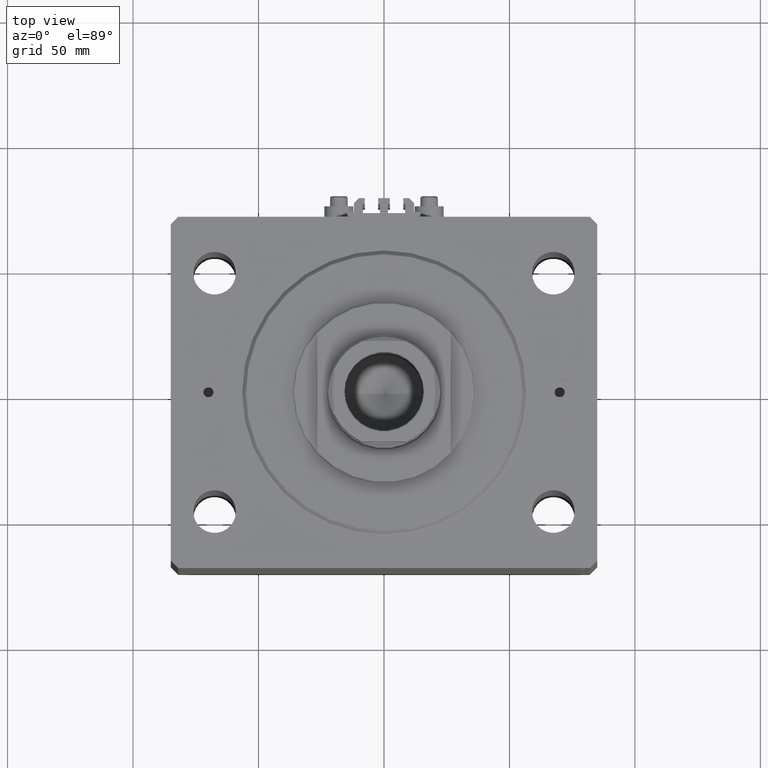
[diagram: clean part render]
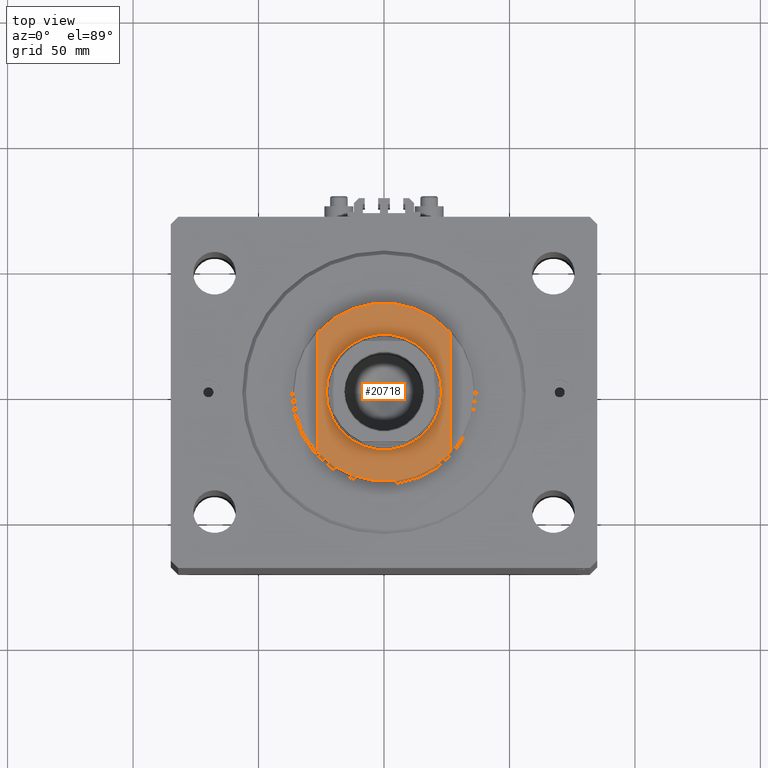
[diagram: same view with one face highlighted and labeled with its STEP entity id]
A machine part, top view. The second image highlights one B-rep face of the part: STEP entity #20718.
In plain terms, the highlighted planar face has unit normal (0, 0, 1).
Its self-contained STEP definition (entity closure, byte-faithful):
#1101 = CARTESIAN_POINT ( 'NONE',  ( 26.50000000000000000, -23.62202362203536765, -8.000000000000000000 ) ) ;
#1213 = AXIS2_PLACEMENT_3D ( 'NONE', #12981, #23275, #5347 ) ;
#1593 = DIRECTION ( 'NONE',  ( 0.000000000000000000, 0.000000000000000000, -1.000000000000000000 ) ) ;
#1653 = CARTESIAN_POINT ( 'NONE',  ( 0.000000000000000000, 0.000000000000000000, -8.000000000000000000 ) ) ;
#1661 = EDGE_CURVE ( 'NONE', #17832, #17468, #25920, .T. ) ;
#3263 = LINE ( 'NONE', #43122, #45022 ) ;
#3404 = EDGE_CURVE ( 'NONE', #37430, #14197, #7607, .T. ) ;
#4210 = ORIENTED_EDGE ( 'NONE', *, *, #29337, .T. ) ;
#5347 = DIRECTION ( 'NONE',  ( -1.000000000000000000, 0.000000000000000000, 0.000000000000000000 ) ) ;
#7480 = ORIENTED_EDGE ( 'NONE', *, *, #1661, .T. ) ;
#7607 = LINE ( 'NONE', #39592, #7695 ) ;
#7695 = VECTOR ( 'NONE', #32198, 1000.000000000000000 ) ;
#7870 = EDGE_CURVE ( 'NONE', #37430, #10990, #23084, .T. ) ;
#9356 = DIRECTION ( 'NONE',  ( 0.000000000000000000, 0.000000000000000000, -1.000000000000000000 ) ) ;
#9581 = CARTESIAN_POINT ( 'NONE',  ( 0.000000000000000000, 0.000000000000000000, -8.000000000000000000 ) ) ;
#10990 = VERTEX_POINT ( 'NONE', #43093 ) ;
#11144 = CIRCLE ( 'NONE', #1213, 23.00000000000001776 ) ;
#11440 = AXIS2_PLACEMENT_3D ( 'NONE', #1653, #16229, #34583 ) ;
#11486 = AXIS2_PLACEMENT_3D ( 'NONE', #23567, #1593, #45977 ) ;
#12981 = CARTESIAN_POINT ( 'NONE',  ( 0.000000000000000000, 0.000000000000000000, -8.000000000000000000 ) ) ;
#14197 = VERTEX_POINT ( 'NONE', #30476 ) ;
#14702 = ORIENTED_EDGE ( 'NONE', *, *, #3404, .F. ) ;
#16229 = DIRECTION ( 'NONE',  ( -0.000000000000000000, -0.000000000000000000, 1.000000000000000000 ) ) ;
#16392 = CARTESIAN_POINT ( 'NONE',  ( 0.000000000000000000, 0.000000000000000000, -8.000000000000000000 ) ) ;
#17468 = VERTEX_POINT ( 'NONE', #40631 ) ;
#17832 = VERTEX_POINT ( 'NONE', #29830 ) ;
#18193 = EDGE_LOOP ( 'NONE', ( #42564, #7480 ) ) ;
#18292 = EDGE_CURVE ( 'NONE', #17468, #17832, #11144, .T. ) ;
#19978 = FACE_OUTER_BOUND ( 'NONE', #28335, .T. ) ;
#20718 = ADVANCED_FACE ( 'NONE', ( #26908, #19978 ), #34523, .T. ) ;
#23084 = CIRCLE ( 'NONE', #39817, 35.49999999999996447 ) ;
#23275 = DIRECTION ( 'NONE',  ( -0.000000000000000000, -0.000000000000000000, 1.000000000000000000 ) ) ;
#23567 = CARTESIAN_POINT ( 'NONE',  ( 0.000000000000000000, 0.000000000000000000, -8.000000000000000000 ) ) ;
#24196 = ORIENTED_EDGE ( 'NONE', *, *, #7870, .T. ) ;
#24953 = DIRECTION ( 'NONE',  ( 0.000000000000000000, 0.000000000000000000, -1.000000000000000000 ) ) ;
#25219 = CIRCLE ( 'NONE', #11486, 35.49999999999996447 ) ;
#25792 = ORIENTED_EDGE ( 'NONE', *, *, #33819, .T. ) ;
#25920 = CIRCLE ( 'NONE', #11440, 23.00000000000001776 ) ;
#26908 = FACE_BOUND ( 'NONE', #18193, .T. ) ;
#28285 = CARTESIAN_POINT ( 'NONE',  ( -26.50000000000000000, 23.62202362203536765, -8.000000000000000000 ) ) ;
#28335 = EDGE_LOOP ( 'NONE', ( #24196, #4210, #25792, #14702 ) ) ;
#29288 = DIRECTION ( 'NONE',  ( 0.000000000000000000, -1.000000000000000000, -0.000000000000000000 ) ) ;
#29337 = EDGE_CURVE ( 'NONE', #10990, #43528, #3263, .T. ) ;
#29830 = CARTESIAN_POINT ( 'NONE',  ( 23.00000000000001776, 2.816687638038914718E-15, -8.000000000000000000 ) ) ;
#30476 = CARTESIAN_POINT ( 'NONE',  ( -26.50000000000000711, -23.62202362203537476, -8.000000000000000000 ) ) ;
#30601 = DIRECTION ( 'NONE',  ( -1.000000000000000000, 0.000000000000000000, 0.000000000000000000 ) ) ;
#32198 = DIRECTION ( 'NONE',  ( -0.000000000000000000, -1.000000000000000000, -0.000000000000000000 ) ) ;
#33819 = EDGE_CURVE ( 'NONE', #43528, #14197, #25219, .T. ) ;
#34523 = PLANE ( 'NONE',  #43188 ) ;
#34583 = DIRECTION ( 'NONE',  ( -1.000000000000000000, 0.000000000000000000, 0.000000000000000000 ) ) ;
#37430 = VERTEX_POINT ( 'NONE', #28285 ) ;
#39592 = CARTESIAN_POINT ( 'NONE',  ( -26.50000000000000000, -36.36963018783666257, -8.000000000000000000 ) ) ;
#39817 = AXIS2_PLACEMENT_3D ( 'NONE', #9581, #9356, #30601 ) ;
#40631 = CARTESIAN_POINT ( 'NONE',  ( -23.00000000000001776, 0.000000000000000000, -8.000000000000000000 ) ) ;
#42564 = ORIENTED_EDGE ( 'NONE', *, *, #18292, .T. ) ;
#43081 = DIRECTION ( 'NONE',  ( -1.000000000000000000, 0.000000000000000000, -0.000000000000000000 ) ) ;
#43093 = CARTESIAN_POINT ( 'NONE',  ( 26.50000000000000000, 23.62202362203536765, -8.000000000000000000 ) ) ;
#43122 = CARTESIAN_POINT ( 'NONE',  ( 26.50000000000000000, -36.36963018783666257, -8.000000000000000000 ) ) ;
#43188 = AXIS2_PLACEMENT_3D ( 'NONE', #16392, #24953, #43081 ) ;
#43528 = VERTEX_POINT ( 'NONE', #1101 ) ;
#45022 = VECTOR ( 'NONE', #29288, 1000.000000000000000 ) ;
#45977 = DIRECTION ( 'NONE',  ( -1.000000000000000000, 0.000000000000000000, 0.000000000000000000 ) ) ;